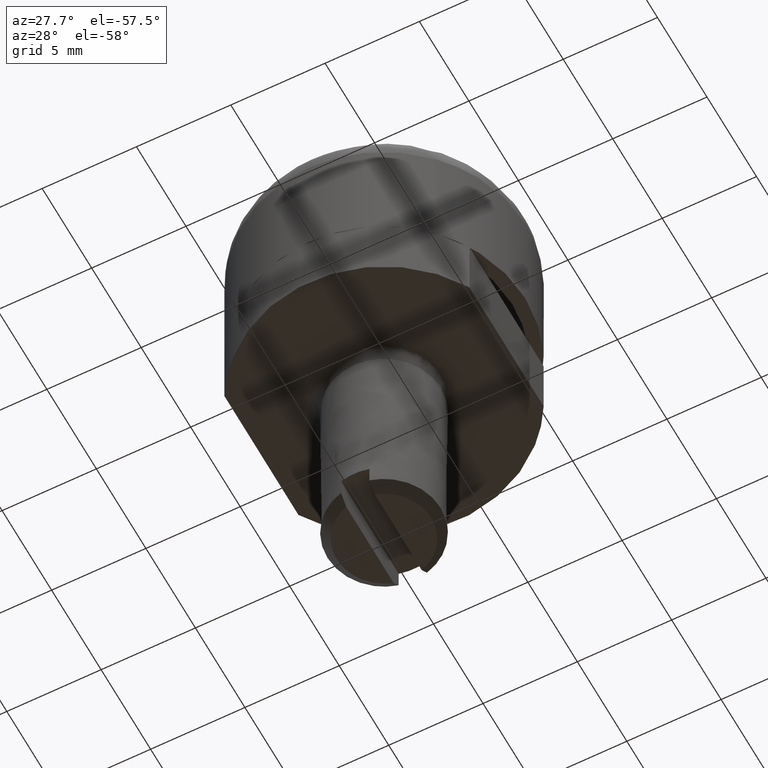
[diagram: clean part render]
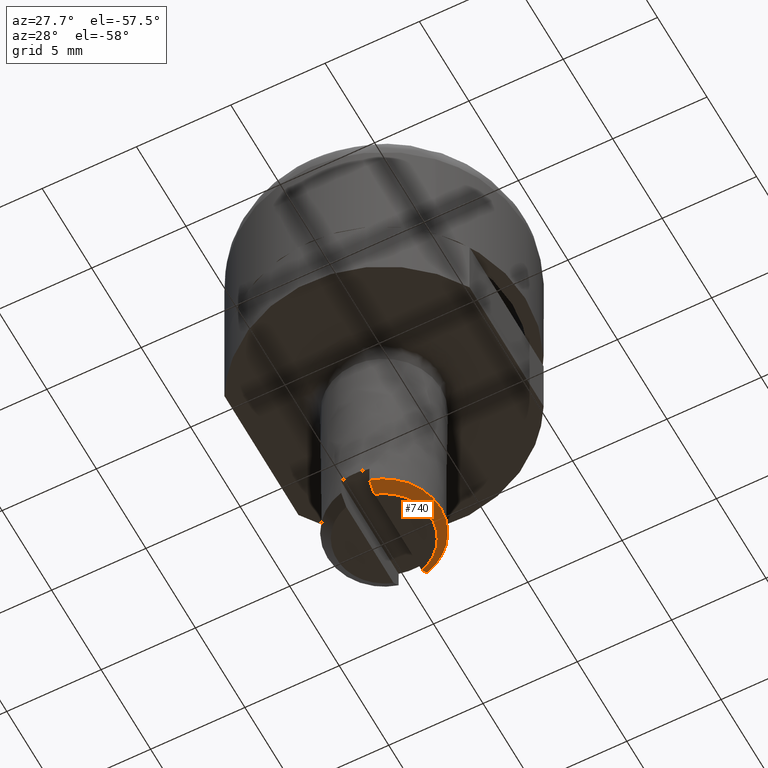
[diagram: same view with one face highlighted and labeled with its STEP entity id]
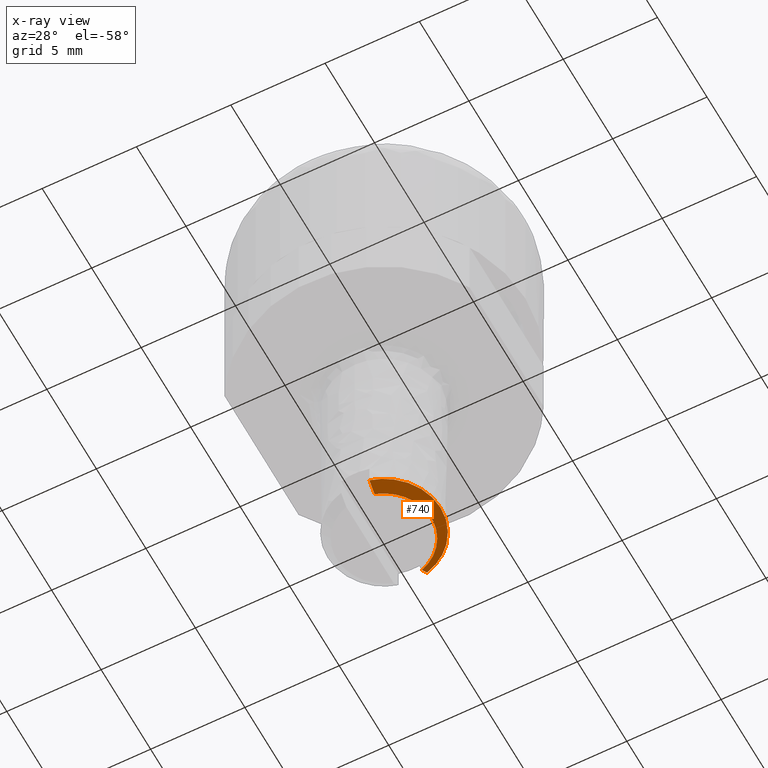
[diagram: x-ray of the same camera — body ghosted, the highlighted face saturated]
A machine part, auxiliary view. The second image highlights one B-rep face of the part: STEP entity #740.
The next image is the same camera in x-ray: the body ghosted, the highlighted face saturated — about 0% of this face is hidden behind the body in this view.
In plain terms, the highlighted face is a freeform B-spline surface patch.
Its self-contained STEP definition (entity closure, byte-faithful):
#531=CARTESIAN_POINT('',(2.297376290498585,1.929264673354842,-14.999999999999799));
#532=VERTEX_POINT('',#531);
#538=CARTESIAN_POINT('',(0.750000000000000,2.904737509655565,-14.999999999999799));
#539=VERTEX_POINT('',#538);
#540=CARTESIAN_POINT('',(0.750000000000000,2.904737509655565,-14.999999999999799));
#541=CARTESIAN_POINT('',(0.984365454758908,2.844286311687188,-14.999999999999780));
#542=CARTESIAN_POINT('',(1.338398493443904,2.705347464707996,-14.999999999999870));
#543=CARTESIAN_POINT('',(1.863754981124429,2.374177242307407,-14.999999999999689));
#544=CARTESIAN_POINT('',(2.141768917019797,2.114647278046655,-14.999999999999931));
#545=CARTESIAN_POINT('',(2.297376290498585,1.929264673354842,-14.999999999999799));
#546=B_SPLINE_CURVE_WITH_KNOTS('',3,(#540,#541,#542,#543,#544,#545),.UNSPECIFIED.,.F.,.U.,(4,1,1,4),(4.335772E-009,0.726087514668889,1.132695392775629,1.858782903108686),.UNSPECIFIED.);
#547=EDGE_CURVE('',#539,#532,#546,.T.);
#649=CARTESIAN_POINT('',(0.750000000000000,-2.904737509655565,-14.999999999999799));
#650=VERTEX_POINT('',#649);
#656=CARTESIAN_POINT('',(2.297376290498585,1.929264673354842,-14.999999999999799));
#657=CARTESIAN_POINT('',(2.439260004229475,1.760382429599017,-14.999999999999821));
#658=CARTESIAN_POINT('',(2.628292116861062,1.476829499436001,-14.999999999999810));
#659=CARTESIAN_POINT('',(2.840142632823668,1.001034428381689,-14.999999999999730));
#660=CARTESIAN_POINT('',(2.962155678664470,0.558781980245208,-15.000000000000030));
#661=CARTESIAN_POINT('',(3.018886137247774,-0.007335937823931,-14.999999999999750));
#662=CARTESIAN_POINT('',(2.969476942415562,-0.536265168054002,-14.999999999999680));
#663=CARTESIAN_POINT('',(2.830579416167714,-1.022236501887917,-14.999999999999920));
#664=CARTESIAN_POINT('',(2.626365610226126,-1.484428406068164,-14.999999999999959));
#665=CARTESIAN_POINT('',(2.340952227790165,-1.903994136213181,-14.999999999999080));
#666=CARTESIAN_POINT('',(1.917802374285131,-2.329680296525880,-15.000000000000300));
#667=CARTESIAN_POINT('',(1.415015059058669,-2.676018333248661,-14.999999999999529));
#668=CARTESIAN_POINT('',(0.978836149777860,-2.845704471710226,-14.999999999999851));
#669=CARTESIAN_POINT('',(0.750000000000000,-2.904737509655565,-14.999999999999799));
#670=B_SPLINE_CURVE_WITH_KNOTS('',3,(#656,#657,#658,#659,#660,#661,#662,#663,#664,#665,#666,#667,#668,#669),.UNSPECIFIED.,.F.,.U.,(4,1,1,1,1,1,1,1,1,1,1,4),(0.000000039089234,0.661702313158501,1.016196477775161,1.559749873765195,2.032406586098823,2.717747422827423,3.143126564809698,3.544874372813282,4.230225463572015,4.655615606213841,5.340963501486838,6.049936427869705),.UNSPECIFIED.);
#671=EDGE_CURVE('',#532,#650,#670,.T.);
#680=CARTESIAN_POINT('',(0.557772107581097,2.424158931671734,-15.512500000000010));
#681=CARTESIAN_POINT('',(0.675562925777619,2.936095007569009,-14.987187499999800));
#682=CARTESIAN_POINT('',(2.520817304375933,1.972483984791033,-15.512500000000010));
#683=CARTESIAN_POINT('',(3.053165782850575,2.389034936855790,-14.987187499999797));
#684=CARTESIAN_POINT('',(2.487152584790303,-0.041572466491844,-15.512500000000010));
#685=CARTESIAN_POINT('',(3.012391717332348,-0.050351777568832,-14.987187499999800));
#686=CARTESIAN_POINT('',(2.453487865204673,-2.055628917774722,-15.512500000000010));
#687=CARTESIAN_POINT('',(2.971617651814121,-2.489738491993454,-14.987187499999797));
#688=CARTESIAN_POINT('',(0.476444090869930,-2.441445735271302,-15.512500000000010));
#689=CARTESIAN_POINT('',(0.577059984934348,-2.957032453989040,-14.987187499999800));
#697=(BOUNDED_SURFACE()B_SPLINE_SURFACE(1,2,((#680,#682,#684,#686,#688),(#681,#683,#685,#687,#689)),.UNSPECIFIED.,.F.,.F.,.U.)B_SPLINE_SURFACE_WITH_KNOTS((2,2),(3,2,3),(0.0,1.0),(0.0,4.267571447210720,8.535142894421441),.UNSPECIFIED.)GEOMETRIC_REPRESENTATION_ITEM()RATIONAL_B_SPLINE_SURFACE(((1.0,0.777145961456971,1.0,0.777145961456971,1.0),(1.0,0.777145961456971,1.0,0.777145961456971,1.0)))REPRESENTATION_ITEM('')SURFACE());
#698=ORIENTED_EDGE('',*,*,#547,.T.);
#699=ORIENTED_EDGE('',*,*,#671,.T.);
#700=CARTESIAN_POINT('',(0.750000000000000,-2.384848003542226,-15.500000000000000));
#701=VERTEX_POINT('',#700);
#702=CARTESIAN_POINT('',(0.750000000000000,-2.904737509655565,-14.999999999999799));
#703=CARTESIAN_POINT('',(0.750000000000000,-2.732000227821515,-15.167247734292220));
#704=CARTESIAN_POINT('',(0.750000000000000,-2.558835971659446,-15.334051813370900));
#705=CARTESIAN_POINT('',(0.750000000000000,-2.384848003542226,-15.500000000000000));
#706=B_SPLINE_CURVE_WITH_KNOTS('',3,(#702,#703,#704,#705),.UNSPECIFIED.,.F.,.U.,(4,4),(0.0,0.097459408056545),.UNSPECIFIED.);
#707=EDGE_CURVE('',#650,#701,#706,.T.);
#708=ORIENTED_EDGE('',*,*,#707,.T.);
#709=CARTESIAN_POINT('',(0.750000000000000,2.384848003542226,-15.500000000000000));
#710=VERTEX_POINT('',#709);
#711=CARTESIAN_POINT('',(0.750000000000000,2.384848003542226,-15.500000000000000));
#712=CARTESIAN_POINT('',(0.946597623365773,2.323072140007440,-15.499999999999959));
#713=CARTESIAN_POINT('',(1.271450398097707,2.174650216275884,-15.500000000000080));
#714=CARTESIAN_POINT('',(1.702591771923371,1.852977874256665,-15.499999999999950));
#715=CARTESIAN_POINT('',(2.057281819263719,1.458245931378601,-15.500000000000011));
#716=CARTESIAN_POINT('',(2.306035531167635,1.007680335288381,-15.500000000000011));
#717=CARTESIAN_POINT('',(2.448262974734077,0.558326760521644,-15.499999999999989));
#718=CARTESIAN_POINT('',(2.514509874651851,0.099851394567466,-15.500000000000041));
#719=CARTESIAN_POINT('',(2.489244640642936,-0.364043864972824,-15.499999999999950));
#720=CARTESIAN_POINT('',(2.388012693523963,-0.764891496719320,-15.500000000000041));
#721=CARTESIAN_POINT('',(2.249948777437696,-1.109762432606604,-15.499999999999970));
#722=CARTESIAN_POINT('',(2.075970157780056,-1.410657752923067,-15.500000000000000));
#723=CARTESIAN_POINT('',(1.842941338560971,-1.700244456048958,-15.500000000000000));
#724=CARTESIAN_POINT('',(1.573364786720695,-1.956330272710766,-15.500000000000080));
#725=CARTESIAN_POINT('',(1.211719927744071,-2.204497602432824,-15.499999999999680));
#726=CARTESIAN_POINT('',(0.915136388563509,-2.332944910442620,-15.500000000000540));
#727=CARTESIAN_POINT('',(0.750000000000000,-2.384848003542226,-15.500000000000000));
#728=B_SPLINE_CURVE_WITH_KNOTS('',3,(#711,#712,#713,#714,#715,#716,#717,#718,#719,#720,#721,#722,#723,#724,#725,#726,#727),.UNSPECIFIED.,.F.,.U.,(4,1,1,1,1,1,1,1,1,1,1,1,1,1,4),(0.000000059930081,0.618214932268805,1.063332259143914,1.607365437605598,2.200860593443113,2.596525097918129,3.016916539963157,3.585656462976384,3.981317911466765,4.253328563719197,4.698450422624219,5.019925582193926,5.366134017338608,5.811246001249143,6.330544170517530),.UNSPECIFIED.);
#729=EDGE_CURVE('',#710,#701,#728,.T.);
#730=ORIENTED_EDGE('',*,*,#729,.F.);
#731=CARTESIAN_POINT('',(0.750000000000000,2.384848003542226,-15.500000000000000));
#732=CARTESIAN_POINT('',(0.750000000000000,2.558816355898788,-15.334071573065261));
#733=CARTESIAN_POINT('',(0.750000000000000,2.731983846120844,-15.167263146179620));
#734=CARTESIAN_POINT('',(0.750000000000000,2.904737509655565,-14.999999999999799));
#735=B_SPLINE_CURVE_WITH_KNOTS('',3,(#731,#732,#733,#734),.UNSPECIFIED.,.F.,.U.,(4,4),(0.903562280399814,1.0),.UNSPECIFIED.);
#736=EDGE_CURVE('',#710,#539,#735,.T.);
#737=ORIENTED_EDGE('',*,*,#736,.T.);
#738=EDGE_LOOP('',(#698,#699,#708,#730,#737));
#739=FACE_OUTER_BOUND('',#738,.T.);
#740=ADVANCED_FACE('',(#739),#697,.T.);